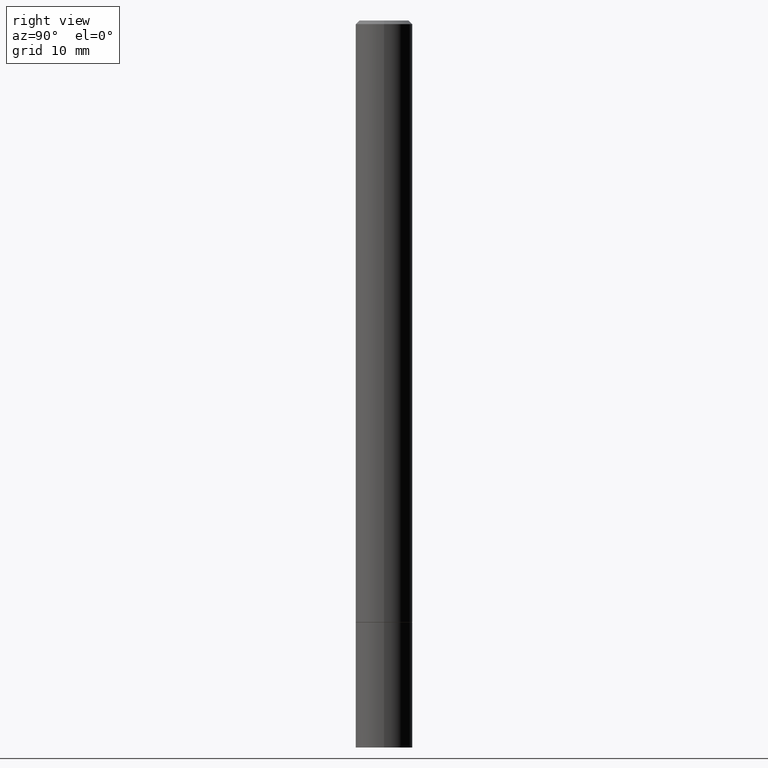
[diagram: clean part render]
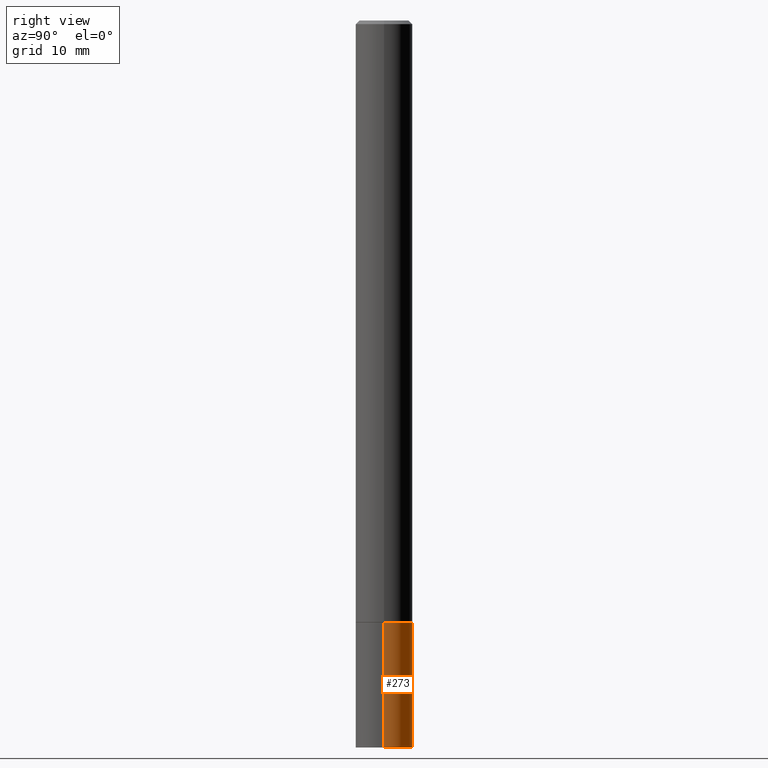
[diagram: same view with one face highlighted and labeled with its STEP entity id]
A machine part, right view. The second image highlights one B-rep face of the part: STEP entity #273.
In plain terms, the highlighted cylindrical surface (edge-blend (fillet) strip) has radius 3.9688 mm, axis along (-0, 0, 1).
Its self-contained STEP definition (entity closure, byte-faithful):
#2 = VERTEX_POINT ( 'NONE', #139 ) ;
#11 = VECTOR ( 'NONE', #337, 39.37007874015748143 ) ;
#13 = DIRECTION ( 'NONE',  ( -2.445468806185136597E-29, 3.491481338843145583E-15, 1.000000000000000000 ) ) ;
#15 = CARTESIAN_POINT ( 'NONE',  ( -0.1562500000000000000, -1.165463275018538400E-14, -4.000000000000000000 ) ) ;
#17 = DIRECTION ( 'NONE',  ( -2.445468806185136597E-29, 3.491481338843145583E-15, 1.000000000000000000 ) ) ;
#34 = CARTESIAN_POINT ( 'NONE',  ( 9.781875224740546387E-29, -1.396592535537258233E-14, -4.000000000000000000 ) ) ;
#50 = FACE_OUTER_BOUND ( 'NONE', #180, .T. ) ;
#51 = CIRCLE ( 'NONE', #310, 0.1562500000000000000 ) ;
#59 = ORIENTED_EDGE ( 'NONE', *, *, #241, .F. ) ;
#71 = CARTESIAN_POINT ( 'NONE',  ( -0.1562500000000000000, -1.165463275018538400E-14, -3.312000000000000277 ) ) ;
#72 = DIRECTION ( 'NONE',  ( 1.000000000000000000, -6.982962677686262766E-15, 0.000000000000000000 ) ) ;
#78 = LINE ( 'NONE', #362, #262 ) ;
#80 = CYLINDRICAL_SURFACE ( 'NONE', #313, 0.1562500000000000000 ) ;
#118 = ORIENTED_EDGE ( 'NONE', *, *, #185, .T. ) ;
#132 = DIRECTION ( 'NONE',  ( 1.000000000000000000, -6.982962677686266711E-15, 4.876176775795936353E-29 ) ) ;
#139 = CARTESIAN_POINT ( 'NONE',  ( 0.1562500000000000000, -1.265487411263697714E-14, -3.312000000000000277 ) ) ;
#140 = ORIENTED_EDGE ( 'NONE', *, *, #363, .T. ) ;
#156 = DIRECTION ( 'NONE',  ( -2.445468806185136597E-29, 3.491481338843145583E-15, 1.000000000000000000 ) ) ;
#167 = CARTESIAN_POINT ( 'NONE',  ( 0.000000000000000000, 0.000000000000000000, 0.000000000000000000 ) ) ;
#180 = EDGE_LOOP ( 'NONE', ( #118, #140, #59, #196 ) ) ;
#185 = EDGE_CURVE ( 'NONE', #188, #207, #283, .T. ) ;
#188 = VERTEX_POINT ( 'NONE', #211 ) ;
#196 = ORIENTED_EDGE ( 'NONE', *, *, #201, .F. ) ;
#201 = EDGE_CURVE ( 'NONE', #188, #2, #78, .T. ) ;
#207 = VERTEX_POINT ( 'NONE', #15 ) ;
#211 = CARTESIAN_POINT ( 'NONE',  ( 0.1562500000000000000, -1.505701327376106229E-14, -4.000000000000000000 ) ) ;
#239 = CARTESIAN_POINT ( 'NONE',  ( 8.099392686085172175E-29, -1.156378619424849876E-14, -3.312000000000000277 ) ) ;
#241 = EDGE_CURVE ( 'NONE', #2, #290, #51, .T. ) ;
#253 = LINE ( 'NONE', #257, #11 ) ;
#257 = CARTESIAN_POINT ( 'NONE',  ( -0.1562500000000000000, 1.110223024625156540E-15, -7.685836078523291160E-30 ) ) ;
#262 = VECTOR ( 'NONE', #289, 39.37007874015748143 ) ;
#270 = DIRECTION ( 'NONE',  ( 1.000000000000000000, -6.982962677686262766E-15, 0.000000000000000000 ) ) ;
#273 = ADVANCED_FACE ( 'NONE', ( #50 ), #80, .T. ) ;
#283 = CIRCLE ( 'NONE', #366, 0.1562500000000000000 ) ;
#289 = DIRECTION ( 'NONE',  ( -2.445468806185136877E-29, 3.491481338843145188E-15, 1.000000000000000000 ) ) ;
#290 = VERTEX_POINT ( 'NONE', #71 ) ;
#310 = AXIS2_PLACEMENT_3D ( 'NONE', #239, #17, #72 ) ;
#313 = AXIS2_PLACEMENT_3D ( 'NONE', #167, #13, #132 ) ;
#337 = DIRECTION ( 'NONE',  ( -2.445468806185136877E-29, 3.491481338843145188E-15, 1.000000000000000000 ) ) ;
#362 = CARTESIAN_POINT ( 'NONE',  ( 0.1562500000000000000, -1.091087918388479174E-15, 7.619026212181150377E-30 ) ) ;
#363 = EDGE_CURVE ( 'NONE', #207, #290, #253, .T. ) ;
#366 = AXIS2_PLACEMENT_3D ( 'NONE', #34, #156, #270 ) ;